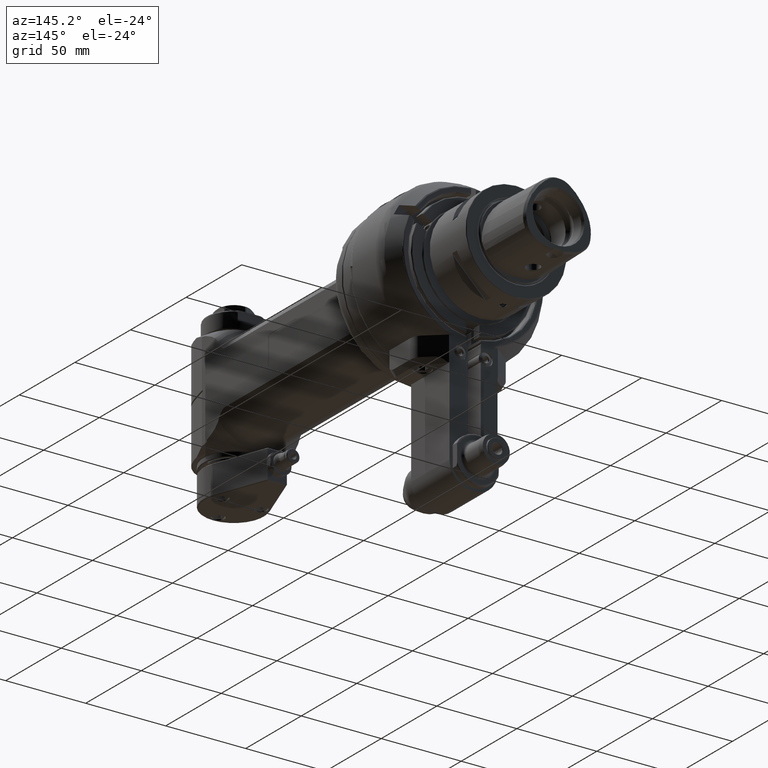
[diagram: clean part render]
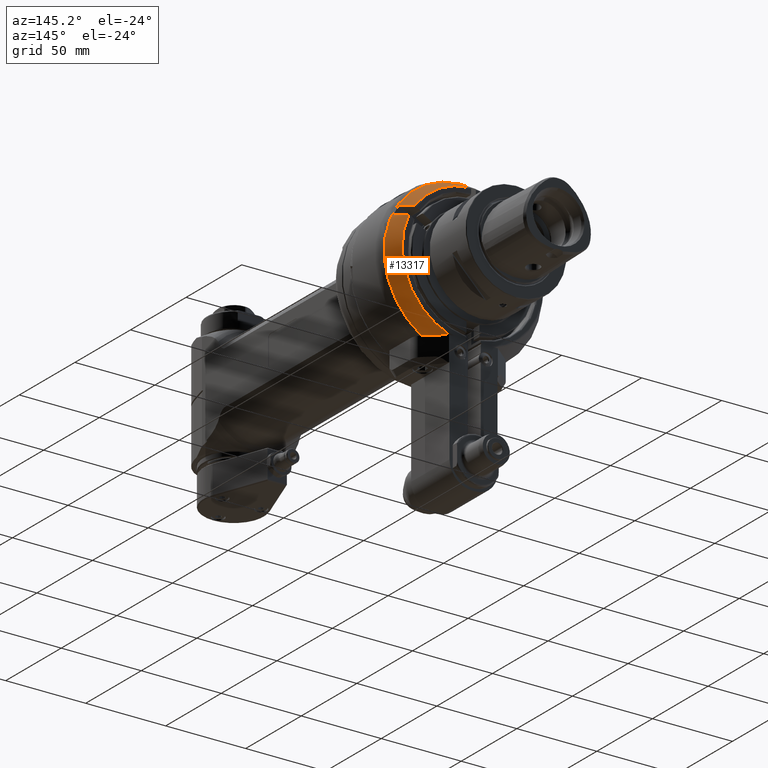
[diagram: same view with one face highlighted and labeled with its STEP entity id]
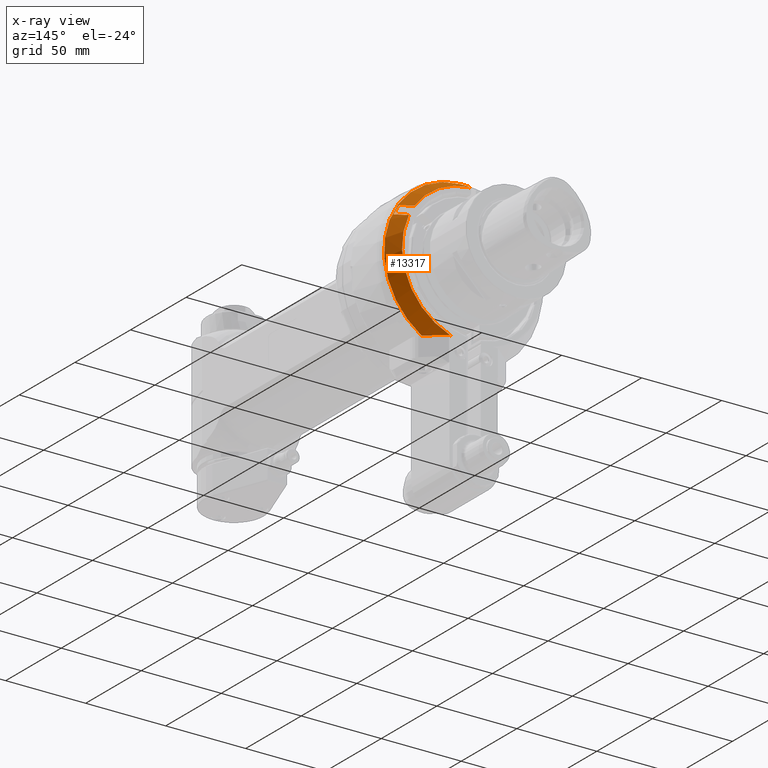
[diagram: x-ray of the same camera — body ghosted, the highlighted face saturated]
A machine part, auxiliary view. The second image highlights one B-rep face of the part: STEP entity #13317.
The next image is the same camera in x-ray: the body ghosted, the highlighted face saturated — about 0% of this face is hidden behind the body in this view.
In plain terms, the highlighted conical surface has half-angle 30 deg.
Its self-contained STEP definition (entity closure, byte-faithful):
#98=(
BOUNDED_CURVE()
B_SPLINE_CURVE(2,(#21522,#21523,#21524),.UNSPECIFIED.,.F.,.F.)
B_SPLINE_CURVE_WITH_KNOTS((3,3),(-4.73034453130044,-2.88449160938601),
 .UNSPECIFIED.)
CURVE()
GEOMETRIC_REPRESENTATION_ITEM()
RATIONAL_B_SPLINE_CURVE((1.01131830246508,1.03049775414956,1.03298555867819))
REPRESENTATION_ITEM('')
);
#252=B_SPLINE_CURVE_WITH_KNOTS('',3,(#21450,#21451,#21452,#21453,#21454,
#21455,#21456,#21457,#21458,#21459),.UNSPECIFIED.,.F.,.F.,(4,3,3,4),(7.62079963907763E-6,
0.3333333333333,0.6666666666667,1.),.UNSPECIFIED.);
#253=B_SPLINE_CURVE_WITH_KNOTS('',3,(#21480,#21481,#21482,#21483,#21484,
#21485,#21486,#21487,#21488,#21489),.UNSPECIFIED.,.F.,.F.,(4,3,3,4),(0.,
0.3333333333333,0.6666666666667,0.999992885751453),.UNSPECIFIED.);
#255=B_SPLINE_CURVE_WITH_KNOTS('',3,(#21527,#21528,#21529,#21530,#21531,
#21532,#21533,#21534,#21535,#21536),.UNSPECIFIED.,.F.,.F.,(4,3,3,4),(2.48991120111288E-6,
0.3333333333333,0.6666666666667,1.),.UNSPECIFIED.);
#448=CONICAL_SURFACE('',#14334,46.84048999,0.523598775598299);
#3209=FACE_OUTER_BOUND('',#4057,.T.);
#4057=EDGE_LOOP('',(#9589,#9590,#9591,#9592,#9593,#9594,#9595,#9596));
#5033=CIRCLE('',#14318,48.90747728811);
#5040=CIRCLE('',#14333,44.28867513459);
#5041=CIRCLE('',#14335,44.28867513459);
#5042=CIRCLE('',#14336,49.39230484541);
#5885=VERTEX_POINT('',#21447);
#5886=VERTEX_POINT('',#21449);
#5888=VERTEX_POINT('',#21463);
#5894=VERTEX_POINT('',#21478);
#5899=VERTEX_POINT('',#21516);
#5900=VERTEX_POINT('',#21520);
#5901=VERTEX_POINT('',#21521);
#5902=VERTEX_POINT('',#21526);
#7302=EDGE_CURVE('',#5886,#5885,#252,.T.);
#7305=EDGE_CURVE('',#5888,#5885,#5033,.T.);
#7313=EDGE_CURVE('',#5888,#5894,#253,.T.);
#7322=EDGE_CURVE('',#5899,#5894,#5040,.T.);
#7323=EDGE_CURVE('',#5900,#5901,#98,.T.);
#7324=EDGE_CURVE('',#5886,#5900,#5041,.T.);
#7325=EDGE_CURVE('',#5899,#5902,#255,.T.);
#7326=EDGE_CURVE('',#5901,#5902,#5042,.T.);
#9589=ORIENTED_EDGE('',*,*,#7323,.F.);
#9590=ORIENTED_EDGE('',*,*,#7324,.F.);
#9591=ORIENTED_EDGE('',*,*,#7302,.T.);
#9592=ORIENTED_EDGE('',*,*,#7305,.F.);
#9593=ORIENTED_EDGE('',*,*,#7313,.T.);
#9594=ORIENTED_EDGE('',*,*,#7322,.F.);
#9595=ORIENTED_EDGE('',*,*,#7325,.T.);
#9596=ORIENTED_EDGE('',*,*,#7326,.F.);
#13317=ADVANCED_FACE('',(#3209),#448,.T.);
#14318=AXIS2_PLACEMENT_3D('',#21465,#16273,#16274);
#14333=AXIS2_PLACEMENT_3D('',#21518,#16308,#16309);
#14334=AXIS2_PLACEMENT_3D('',#21519,#16310,#16311);
#14335=AXIS2_PLACEMENT_3D('',#21525,#16312,#16313);
#14336=AXIS2_PLACEMENT_3D('',#21537,#16314,#16315);
#16273=DIRECTION('center_axis',(0.,1.,0.));
#16274=DIRECTION('ref_axis',(0.828023092261376,0.,0.560693997365684));
#16308=DIRECTION('center_axis',(0.,1.,0.));
#16309=DIRECTION('ref_axis',(0.0338687033523017,0.,0.999426290895549));
#16310=DIRECTION('center_axis',(0.,-1.,0.));
#16311=DIRECTION('ref_axis',(0.,0.,1.));
#16312=DIRECTION('center_axis',(0.,1.,0.));
#16313=DIRECTION('ref_axis',(0.902830377486504,0.,0.429996871485802));
#16314=DIRECTION('center_axis',(0.,-1.,0.));
#16315=DIRECTION('ref_axis',(0.526241939180605,0.,-0.850334887822108));
#21447=CARTESIAN_POINT('',(43.9965205788,31.,21.35995111525));
#21449=CARTESIAN_POINT('',(39.9851327385029,39.0000574311698,19.043974681678));
#21450=CARTESIAN_POINT('Ctrl Pts',(39.9851325718305,39.0000574888291,19.0439751696031));
#21451=CARTESIAN_POINT('Ctrl Pts',(40.4043154252282,38.1643137853345,19.2859905028519));
#21452=CARTESIAN_POINT('Ctrl Pts',(40.832251392528,37.3110325375509,19.5330594487684));
#21453=CARTESIAN_POINT('Ctrl Pts',(41.2688818759683,36.4403288918169,19.785148175919));
#21454=CARTESIAN_POINT('Ctrl Pts',(41.7055223420572,35.5696053392534,20.0372426665546));
#21455=CARTESIAN_POINT('Ctrl Pts',(42.1508577218553,34.6814585920766,20.2943571679607));
#21456=CARTESIAN_POINT('Ctrl Pts',(42.6054066753184,33.7748523434531,20.5567911286025));
#21457=CARTESIAN_POINT('Ctrl Pts',(43.0599556287813,32.8682460948299,20.8192250892441));
#21458=CARTESIAN_POINT('Ctrl Pts',(43.5237181559091,31.94318034476,21.0869785091215));
#21459=CARTESIAN_POINT('Ctrl Pts',(43.9965205787995,31.,21.3599511152508));
#21463=CARTESIAN_POINT('',(40.4965205788,31.,27.42212894174));
#21465=CARTESIAN_POINT('Origin',(0.,31.,0.));
#21478=CARTESIAN_POINT('',(36.4851341375775,39.000053666381,25.1061544459896));
#21480=CARTESIAN_POINT('Ctrl Pts',(40.4965205787991,31.,27.4221289417415));
#21481=CARTESIAN_POINT('Ctrl Pts',(40.0241539021492,31.94231108676,27.1494079138214));
#21482=CARTESIAN_POINT('Ctrl Pts',(39.5606815443361,32.8667981379799,26.8818220232761));
#21483=CARTESIAN_POINT('Ctrl Pts',(39.1062705040848,33.7731294210198,26.6194676868642));
#21484=CARTESIAN_POINT('Ctrl Pts',(38.6518594638333,34.6794607040599,26.3571133504523));
#21485=CARTESIAN_POINT('Ctrl Pts',(38.2065097411435,35.5676362189201,26.0999905681738));
#21486=CARTESIAN_POINT('Ctrl Pts',(37.7697224849393,36.4386525972377,25.8478113282256));
#21487=CARTESIAN_POINT('Ctrl Pts',(37.3329445509744,37.3096503856741,25.595637470475));
#21488=CARTESIAN_POINT('Ctrl Pts',(36.904728718006,38.1634897700063,25.3484069440393));
#21489=CARTESIAN_POINT('Ctrl Pts',(36.4851344544505,39.0000537201756,25.1061540830252));
#21516=CARTESIAN_POINT('',(1.49999993762864,39.0000000328688,44.2632663030788));
#21518=CARTESIAN_POINT('Origin',(0.,39.,0.));
#21519=CARTESIAN_POINT('Origin',(0.,34.58012701892,0.));
#21520=CARTESIAN_POINT('',(14.05299772925,38.99999999999,-42.));
#21521=CARTESIAN_POINT('',(25.9923022768895,30.1602540413385,-42.0000000010633));
#21522=CARTESIAN_POINT('Ctrl Pts',(14.0529977292452,38.9999999999812,-42.));
#21523=CARTESIAN_POINT('Ctrl Pts',(19.6974303615113,35.8978898938293,-42.));
#21524=CARTESIAN_POINT('Ctrl Pts',(25.9923022759617,30.1602540437488,-42.));
#21525=CARTESIAN_POINT('Origin',(0.,39.,0.));
#21526=CARTESIAN_POINT('',(1.50000009631114,30.160265019228,49.3695164173488));
#21527=CARTESIAN_POINT('Ctrl Pts',(1.5,39.000000033257,44.2632663037562));
#21528=CARTESIAN_POINT('Ctrl Pts',(1.5,38.0609621608611,44.8057312890942));
#21529=CARTESIAN_POINT('Ctrl Pts',(1.5,37.1075751970319,45.3564740363296));
#21530=CARTESIAN_POINT('Ctrl Pts',(1.5,36.1399544486178,45.9154281690882));
#21531=CARTESIAN_POINT('Ctrl Pts',(1.5,35.1723264722801,46.4743864771166));
#21532=CARTESIAN_POINT('Ctrl Pts',(1.5,34.1904644987099,47.0415562933434));
#21533=CARTESIAN_POINT('Ctrl Pts',(1.5,33.1938965269447,47.6172104844693));
#21534=CARTESIAN_POINT('Ctrl Pts',(1.5,32.1973285551799,48.1928646755951));
#21535=CARTESIAN_POINT('Ctrl Pts',(1.5,31.18605458522,48.77700324162));
#21536=CARTESIAN_POINT('Ctrl Pts',(1.5,30.16027599869,49.36951007704));
#21537=CARTESIAN_POINT('Origin',(0.,30.16025403784,0.));